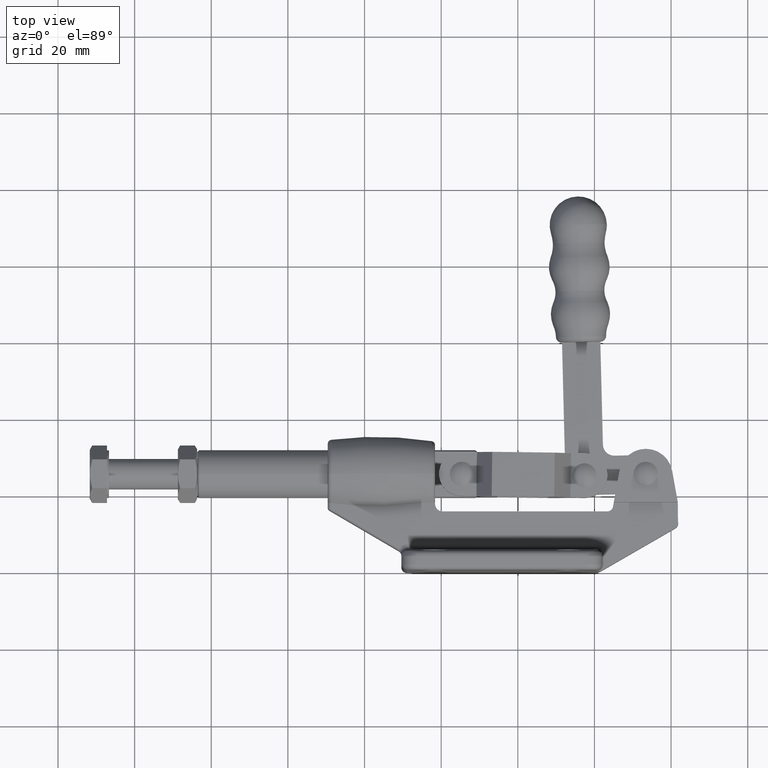
[diagram: clean part render]
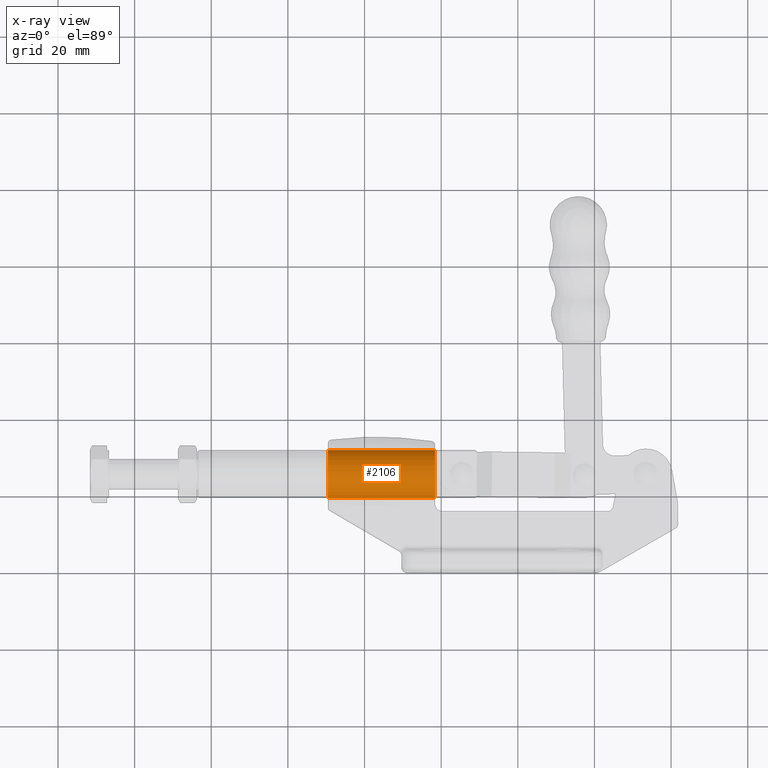
[diagram: x-ray — body ghosted, one internal face saturated and labeled with its STEP entity id]
A machine part, top view, then the same camera in x-ray: the body is ghosted and one INTERNAL B-rep face — a face not visible from any outside direction — is saturated and labeled: STEP entity #2106.
In plain terms, the highlighted cylindrical surface (edge-blend (fillet) strip) has radius 6.3 mm, axis along (-1, 0, 0).
Its self-contained STEP definition (entity closure, byte-faithful):
#286 = DIRECTION ( 'NONE',  ( -1.000000000000000000, 1.080680432988514300E-014, -0.0000000000000000000 ) ) ;
#441 = ORIENTED_EDGE ( 'NONE', *, *, #4856, .F. ) ;
#549 = FACE_OUTER_BOUND ( 'NONE', #7586, .T. ) ;
#1069 = EDGE_CURVE ( 'NONE', #8388, #5552, #1229, .T. ) ;
#1132 = CIRCLE ( 'NONE', #8463, 6.299999999999999800 ) ;
#1229 = LINE ( 'NONE', #1426, #8684 ) ;
#1426 = CARTESIAN_POINT ( 'NONE',  ( -43.78090911409874800, 19.09999999999954700, -3.719593420145837800E-015 ) ) ;
#1673 = CARTESIAN_POINT ( 'NONE',  ( -43.78090911409868400, 25.39999999999954700, -3.719593420145837800E-015 ) ) ;
#1865 = DIRECTION ( 'NONE',  ( -1.000000000000000000, 1.080680432988514100E-014, 0.0000000000000000000 ) ) ;
#2002 = ORIENTED_EDGE ( 'NONE', *, *, #6918, .F. ) ;
#2106 = ADVANCED_FACE ( 'NONE', ( #549 ), #6261, .F. ) ;
#2572 = ORIENTED_EDGE ( 'NONE', *, *, #1069, .T. ) ;
#3259 = VECTOR ( 'NONE', #3907, 1000.000000000000000 ) ;
#3880 = CARTESIAN_POINT ( 'NONE',  ( -61.59999999999975300, 25.39999999999974300, -3.719593420145837800E-015 ) ) ;
#3907 = DIRECTION ( 'NONE',  ( -1.000000000000000000, 1.080680432988514300E-014, -0.0000000000000000000 ) ) ;
#3915 = DIRECTION ( 'NONE',  ( -1.000000000000000000, 1.080680432988514300E-014, -0.0000000000000000000 ) ) ;
#4005 = ORIENTED_EDGE ( 'NONE', *, *, #4979, .T. ) ;
#4291 = AXIS2_PLACEMENT_3D ( 'NONE', #6303, #1865, #7049 ) ;
#4430 = CARTESIAN_POINT ( 'NONE',  ( -61.59999999999996600, 19.09999999999974200, -3.719593420145837800E-015 ) ) ;
#4622 = DIRECTION ( 'NONE',  ( 3.414376365414667800E-014, 1.000000000000000000, 0.0000000000000000000 ) ) ;
#4856 = EDGE_CURVE ( 'NONE', #8388, #6586, #1132, .T. ) ;
#4924 = CARTESIAN_POINT ( 'NONE',  ( -89.60000000000019300, 19.10000000000004400, -3.719593420145837800E-015 ) ) ;
#4979 = EDGE_CURVE ( 'NONE', #5552, #6684, #5431, .T. ) ;
#5219 = LINE ( 'NONE', #5361, #3259 ) ;
#5361 = CARTESIAN_POINT ( 'NONE',  ( -43.78090911409861300, 31.69999999999954800, -2.948065936683005300E-015 ) ) ;
#5431 = CIRCLE ( 'NONE', #4291, 6.299999999999999800 ) ;
#5552 = VERTEX_POINT ( 'NONE', #4924 ) ;
#5817 = CARTESIAN_POINT ( 'NONE',  ( -89.60000000000005100, 31.70000000000004900, -2.948065936682987200E-015 ) ) ;
#5954 = AXIS2_PLACEMENT_3D ( 'NONE', #1673, #3915, #6118 ) ;
#6118 = DIRECTION ( 'NONE',  ( -1.101411730778925100E-014, -1.000000000000000000, 0.0000000000000000000 ) ) ;
#6261 = CYLINDRICAL_SURFACE ( 'NONE', #5954, 6.299999999999999800 ) ;
#6303 = CARTESIAN_POINT ( 'NONE',  ( -89.60000000000012200, 25.40000000000004500, -3.719593420145837800E-015 ) ) ;
#6457 = CARTESIAN_POINT ( 'NONE',  ( -61.59999999999954000, 31.69999999999974300, -2.948065936683004900E-015 ) ) ;
#6586 = VERTEX_POINT ( 'NONE', #6457 ) ;
#6684 = VERTEX_POINT ( 'NONE', #5817 ) ;
#6918 = EDGE_CURVE ( 'NONE', #6586, #6684, #5219, .T. ) ;
#7049 = DIRECTION ( 'NONE',  ( -1.101411730778925100E-014, -1.000000000000000000, 0.0000000000000000000 ) ) ;
#7586 = EDGE_LOOP ( 'NONE', ( #2002, #441, #2572, #4005 ) ) ;
#8388 = VERTEX_POINT ( 'NONE', #4430 ) ;
#8463 = AXIS2_PLACEMENT_3D ( 'NONE', #3880, #9068, #4622 ) ;
#8684 = VECTOR ( 'NONE', #286, 1000.000000000000000 ) ;
#9068 = DIRECTION ( 'NONE',  ( -1.000000000000000000, 3.469446951953244400E-014, 0.0000000000000000000 ) ) ;